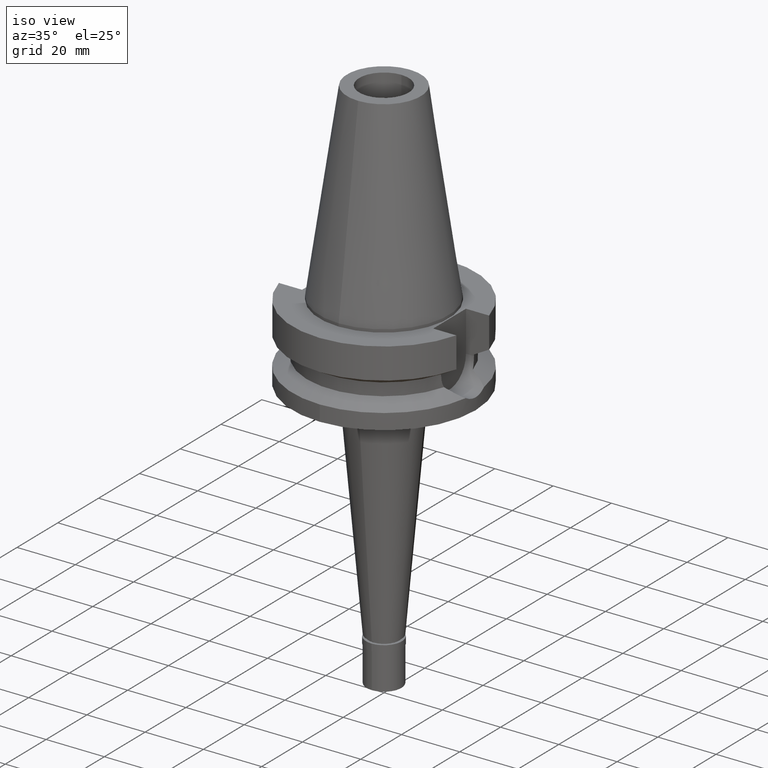
[diagram: clean part render]
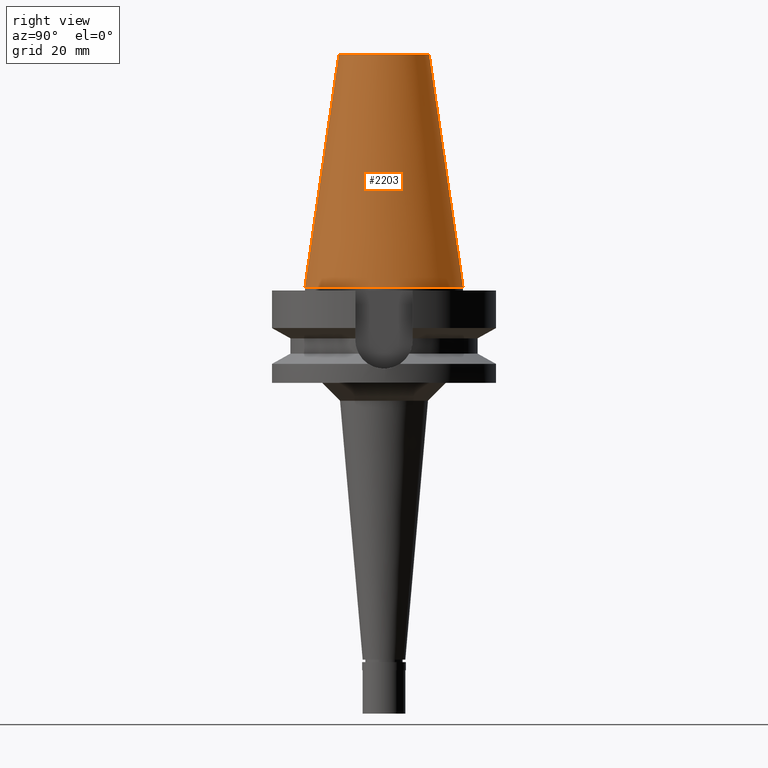
[diagram: tour spotlight — one face highlighted and labeled with its STEP entity id]
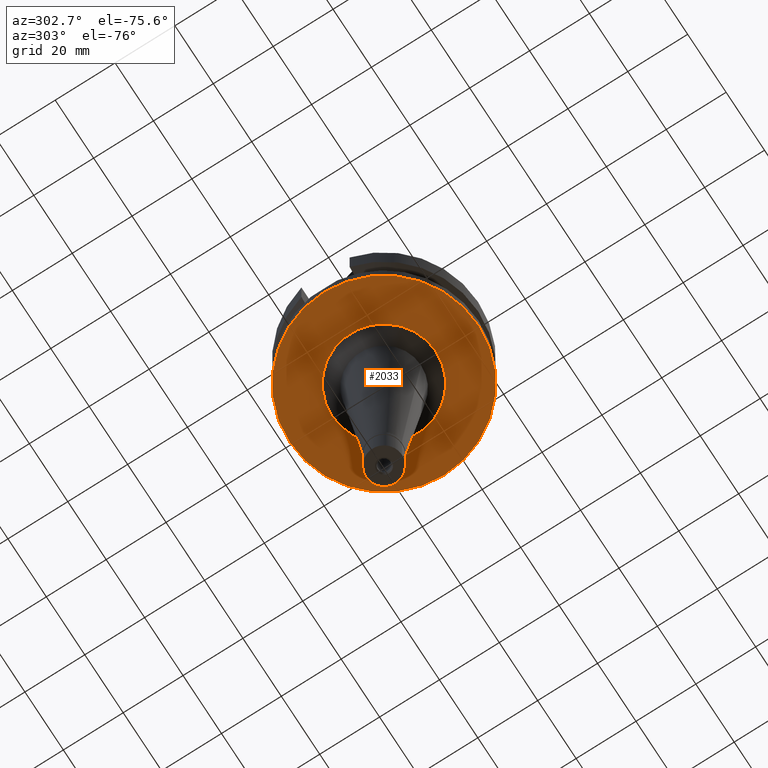
[diagram: tour spotlight — one face highlighted and labeled with its STEP entity id]
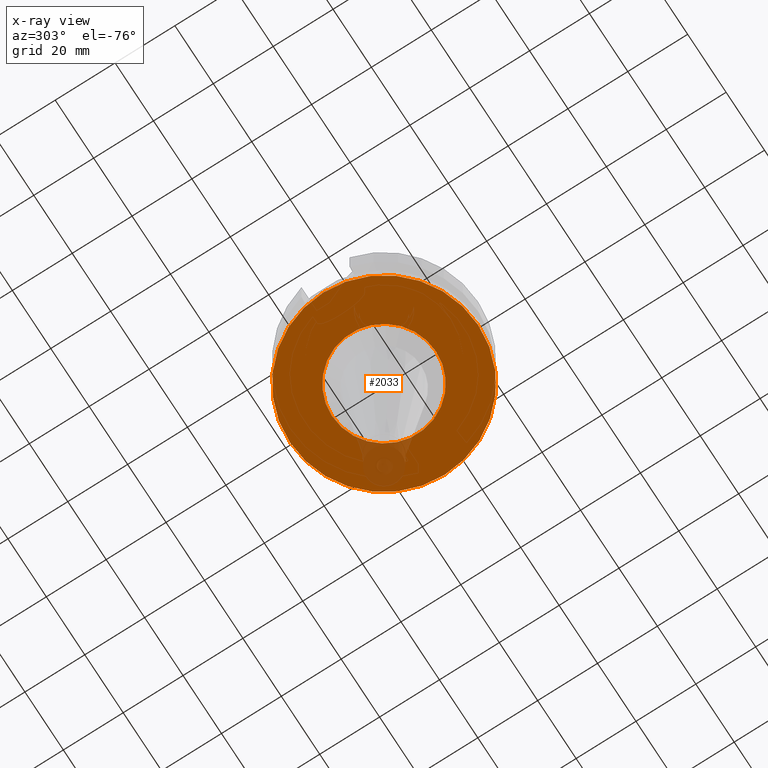
[diagram: x-ray of the same camera — body ghosted, this tour face saturated]
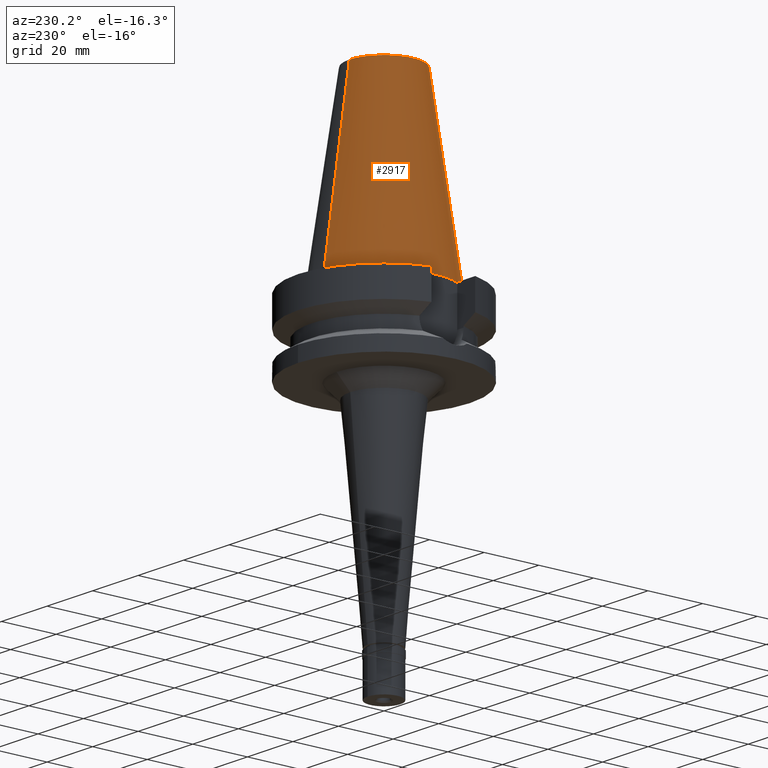
[diagram: tour spotlight — one face highlighted and labeled with its STEP entity id]
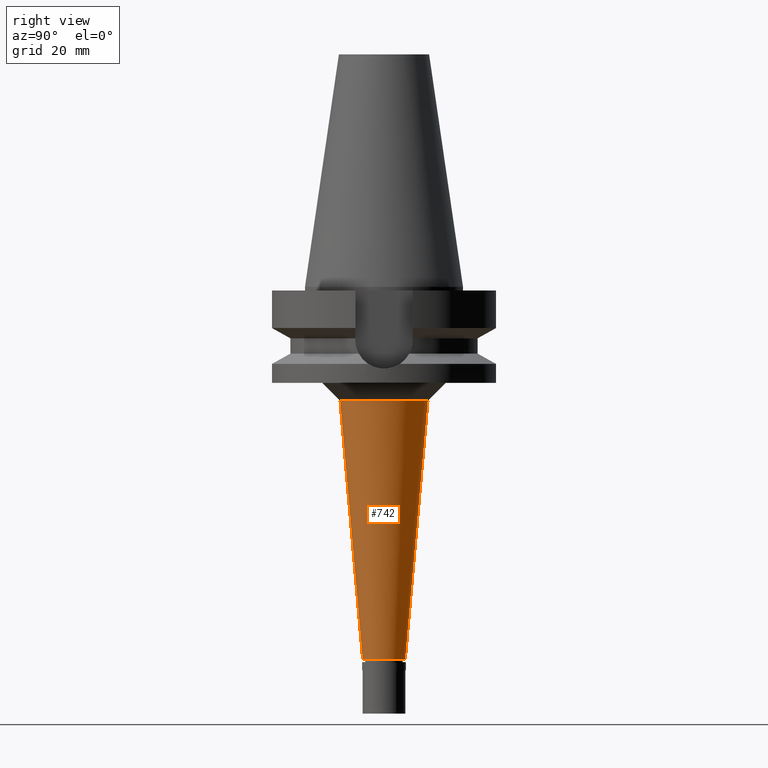
[diagram: tour spotlight — one face highlighted and labeled with its STEP entity id]
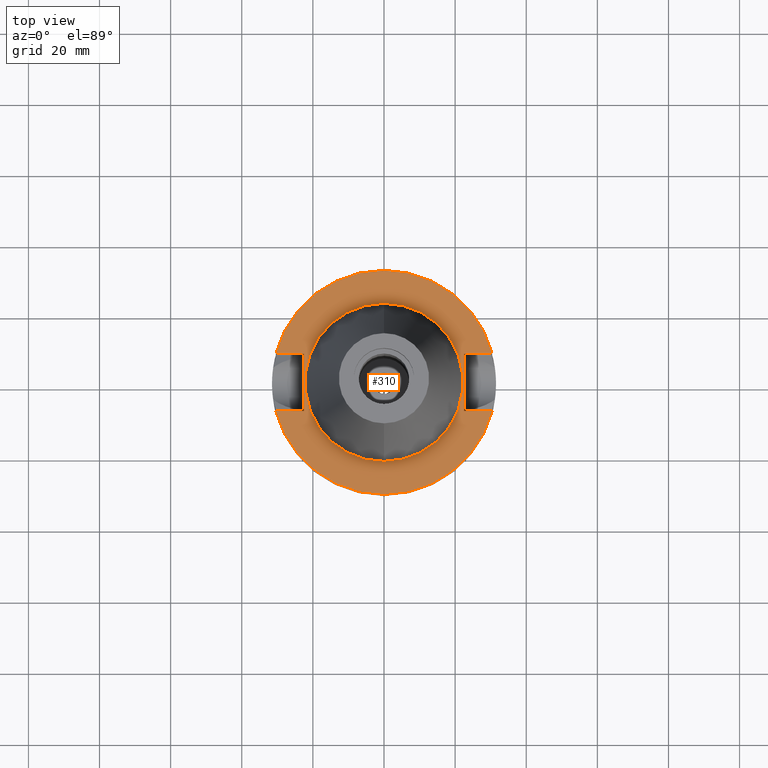
[diagram: tour spotlight — one face highlighted and labeled with its STEP entity id]
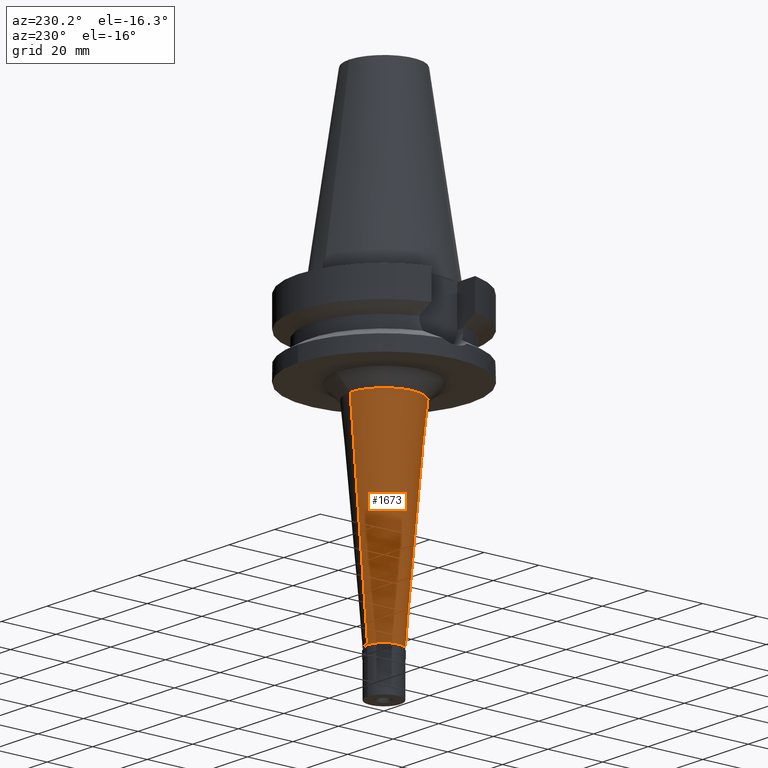
[diagram: tour spotlight — one face highlighted and labeled with its STEP entity id]
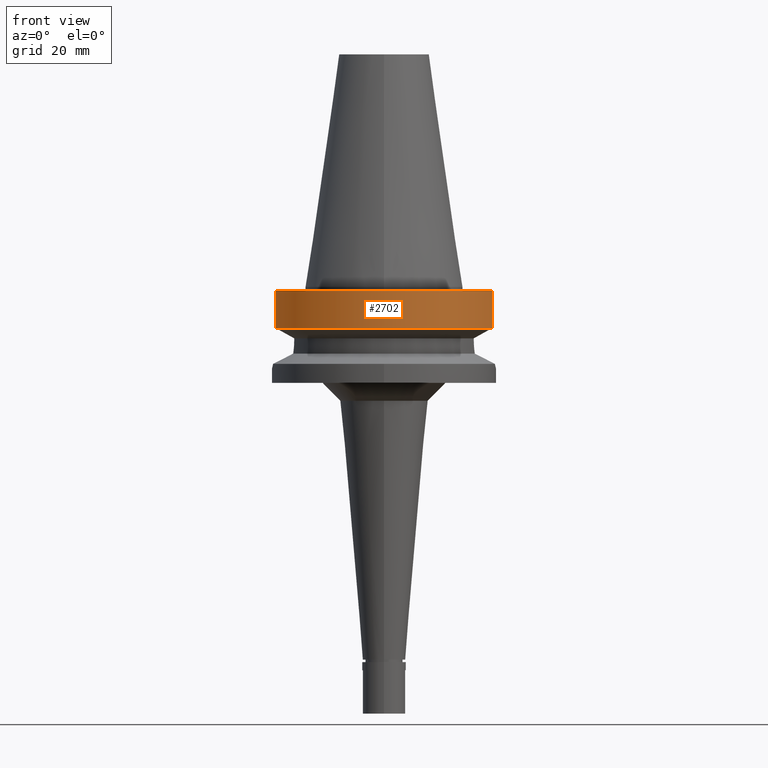
[diagram: tour spotlight — one face highlighted and labeled with its STEP entity id]
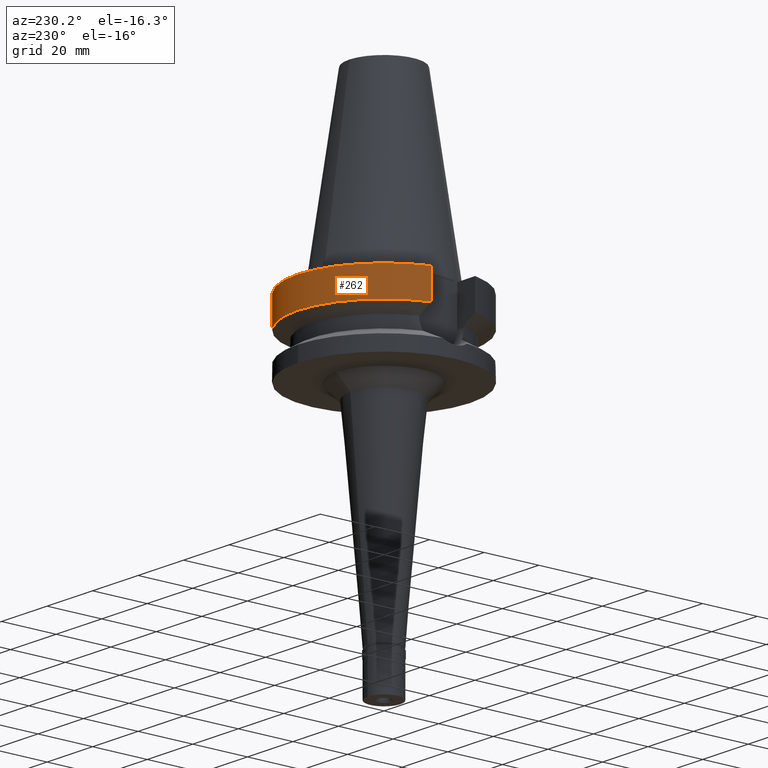
[diagram: tour spotlight — one face highlighted and labeled with its STEP entity id]
A machine part: a face-by-face anatomy tour. The part has 74 B-rep faces; the first image is the clean iso view, then the 8 largest visible faces are spotlighted one at a time (largest first), each with its STEP entity span.

Face 1 — right view, entity #2203. In plain terms, the highlighted conical surface has half-angle 8.297 deg.
Definition (entity closure, byte-faithful):
#63 = CARTESIAN_POINT ( 'NONE',  ( 0.0000000000000000000, 1.625106302469000024E-14, 2.842170943039999687E-14 ) ) ;
#151 = VERTEX_POINT ( 'NONE', #2082 ) ;
#243 = DIRECTION ( 'NONE',  ( 0.0000000000000000000, -1.000000000000000000, 0.0000000000000000000 ) ) ;
#510 = DIRECTION ( 'NONE',  ( 0.0000000000000000000, 0.0000000000000000000, -1.000000000000000000 ) ) ;
#516 = VECTOR ( 'NONE', #2311, 1000.000000000000114 ) ;
#519 = VERTEX_POINT ( 'NONE', #2847 ) ;
#544 = CONICAL_SURFACE ( 'NONE', #2575, 17.45633449714999941, 0.1448099680379422438 ) ;
#687 = CARTESIAN_POINT ( 'NONE',  ( 0.0000000000000000000, 1.625106302469000024E-14, 32.70000000000000284 ) ) ;
#689 = DIRECTION ( 'NONE',  ( 0.0000000000000000000, 1.000000000000000000, 0.0000000000000000000 ) ) ;
#707 = EDGE_CURVE ( 'NONE', #519, #2806, #2832, .T. ) ;
#808 = DIRECTION ( 'NONE',  ( 0.0000000000000000000, -0.1443043893539925626, -0.9895333461855498891 ) ) ;
#820 = LINE ( 'NONE', #2256, #2534 ) ;
#1031 = CARTESIAN_POINT ( 'NONE',  ( 0.0000000000000000000, -12.68766899429999917, 65.40000000000000568 ) ) ;
#1056 = VERTEX_POINT ( 'NONE', #2069 ) ;
#1073 = ORIENTED_EDGE ( 'NONE', *, *, #1754, .F. ) ;
#1502 = AXIS2_PLACEMENT_3D ( 'NONE', #63, #510, #689 ) ;
#1555 = DIRECTION ( 'NONE',  ( 0.0000000000000000000, 0.0000000000000000000, -1.000000000000000000 ) ) ;
#1754 = EDGE_CURVE ( 'NONE', #519, #151, #2547, .T. ) ;
#1937 = EDGE_CURVE ( 'NONE', #151, #1056, #2635, .T. ) ;
#1942 = ORIENTED_EDGE ( 'NONE', *, *, #1937, .F. ) ;
#2058 = ORIENTED_EDGE ( 'NONE', *, *, #707, .T. ) ;
#2069 = CARTESIAN_POINT ( 'NONE',  ( 0.0000000000000000000, -22.22500000000000142, 1.065814103639999827E-13 ) ) ;
#2082 = CARTESIAN_POINT ( 'NONE',  ( 0.0000000000000000000, 22.22500000000000142, 1.065814103639999827E-13 ) ) ;
#2129 = DIRECTION ( 'NONE',  ( 0.0000000000000000000, 0.0000000000000000000, -1.000000000000000000 ) ) ;
#2203 = ADVANCED_FACE ( 'NONE', ( #2532 ), #544, .T. ) ;
#2256 = CARTESIAN_POINT ( 'NONE',  ( 0.0000000000000000000, -12.68766899429999917, 65.40000000000000568 ) ) ;
#2275 = DIRECTION ( 'NONE',  ( 0.0000000000000000000, 1.000000000000000000, 0.0000000000000000000 ) ) ;
#2311 = DIRECTION ( 'NONE',  ( 0.0000000000000000000, 0.1443043893539925626, -0.9895333461855498891 ) ) ;
#2532 = FACE_OUTER_BOUND ( 'NONE', #2548, .T. ) ;
#2534 = VECTOR ( 'NONE', #808, 1000.000000000000114 ) ;
#2547 = LINE ( 'NONE', #2755, #516 ) ;
#2548 = EDGE_LOOP ( 'NONE', ( #2058, #2619, #1942, #1073 ) ) ;
#2553 = AXIS2_PLACEMENT_3D ( 'NONE', #2714, #1555, #2275 ) ;
#2575 = AXIS2_PLACEMENT_3D ( 'NONE', #687, #2129, #243 ) ;
#2619 = ORIENTED_EDGE ( 'NONE', *, *, #2858, .T. ) ;
#2635 = CIRCLE ( 'NONE', #1502, 22.22500000000000142 ) ;
#2714 = CARTESIAN_POINT ( 'NONE',  ( 0.0000000000000000000, 1.625106302469000024E-14, 65.40000000000000568 ) ) ;
#2755 = CARTESIAN_POINT ( 'NONE',  ( 0.0000000000000000000, 12.68766899429999917, 65.40000000000000568 ) ) ;
#2806 = VERTEX_POINT ( 'NONE', #1031 ) ;
#2832 = CIRCLE ( 'NONE', #2553, 12.68766899429999917 ) ;
#2847 = CARTESIAN_POINT ( 'NONE',  ( 0.0000000000000000000, 12.68766899429999917, 65.40000000000000568 ) ) ;
#2858 = EDGE_CURVE ( 'NONE', #2806, #1056, #820, .T. ) ;

Face 2 — auxiliary view, entity #2033. An x-ray twin of the same camera follows (body ghosted, this face saturated) — the face is partly hidden behind the body. In plain terms, the highlighted planar face has unit normal (0, 0, -1).
Definition (entity closure, byte-faithful):
#4 = VERTEX_POINT ( 'NONE', #2513 ) ;
#46 = CIRCLE ( 'NONE', #1680, 17.36917470468999980 ) ;
#92 = CARTESIAN_POINT ( 'NONE',  ( 0.0000000000000000000, 0.0000000000000000000, -27.00000000000000000 ) ) ;
#105 = FACE_BOUND ( 'NONE', #1136, .T. ) ;
#340 = FACE_OUTER_BOUND ( 'NONE', #1606, .T. ) ;
#374 = VERTEX_POINT ( 'NONE', #1457 ) ;
#444 = DIRECTION ( 'NONE',  ( 0.0000000000000000000, -1.000000000000000000, 0.0000000000000000000 ) ) ;
#478 = CARTESIAN_POINT ( 'NONE',  ( 0.0000000000000000000, 17.36917470468999980, -27.00000000000000000 ) ) ;
#585 = PLANE ( 'NONE',  #2856 ) ;
#642 = CARTESIAN_POINT ( 'NONE',  ( 0.0000000000000000000, 2.136641270472000125E-14, -27.00000000000000000 ) ) ;
#670 = EDGE_CURVE ( 'NONE', #1787, #2081, #46, .T. ) ;
#773 = DIRECTION ( 'NONE',  ( 0.0000000000000000000, 0.0000000000000000000, -1.000000000000000000 ) ) ;
#1086 = EDGE_CURVE ( 'NONE', #2081, #1787, #2556, .T. ) ;
#1111 = DIRECTION ( 'NONE',  ( 0.0000000000000000000, 1.000000000000000000, 0.0000000000000000000 ) ) ;
#1136 = EDGE_LOOP ( 'NONE', ( #1728, #2839 ) ) ;
#1285 = AXIS2_PLACEMENT_3D ( 'NONE', #1587, #2764, #444 ) ;
#1332 = DIRECTION ( 'NONE',  ( 0.0000000000000000000, -1.000000000000000000, 0.0000000000000000000 ) ) ;
#1452 = CIRCLE ( 'NONE', #2435, 31.50000000000000000 ) ;
#1457 = CARTESIAN_POINT ( 'NONE',  ( 0.0000000000000000000, 31.50000000000000000, -27.00000000000000000 ) ) ;
#1479 = DIRECTION ( 'NONE',  ( 0.0000000000000000000, -1.000000000000000000, 0.0000000000000000000 ) ) ;
#1556 = DIRECTION ( 'NONE',  ( 0.0000000000000000000, 0.0000000000000000000, 1.000000000000000000 ) ) ;
#1587 = CARTESIAN_POINT ( 'NONE',  ( 0.0000000000000000000, 0.0000000000000000000, -27.00000000000000000 ) ) ;
#1606 = EDGE_LOOP ( 'NONE', ( #1714, #2123 ) ) ;
#1659 = AXIS2_PLACEMENT_3D ( 'NONE', #642, #1556, #1332 ) ;
#1680 = AXIS2_PLACEMENT_3D ( 'NONE', #2451, #2924, #1111 ) ;
#1714 = ORIENTED_EDGE ( 'NONE', *, *, #1994, .F. ) ;
#1728 = ORIENTED_EDGE ( 'NONE', *, *, #670, .F. ) ;
#1787 = VERTEX_POINT ( 'NONE', #478 ) ;
#1799 = CIRCLE ( 'NONE', #1659, 31.50000000000000000 ) ;
#1994 = EDGE_CURVE ( 'NONE', #374, #4, #1452, .T. ) ;
#2033 = ADVANCED_FACE ( 'NONE', ( #340, #105 ), #585, .T. ) ;
#2081 = VERTEX_POINT ( 'NONE', #2925 ) ;
#2084 = EDGE_CURVE ( 'NONE', #4, #374, #1799, .T. ) ;
#2123 = ORIENTED_EDGE ( 'NONE', *, *, #2084, .F. ) ;
#2347 = DIRECTION ( 'NONE',  ( 0.0000000000000000000, 1.000000000000000000, 0.0000000000000000000 ) ) ;
#2435 = AXIS2_PLACEMENT_3D ( 'NONE', #2776, #2565, #2347 ) ;
#2451 = CARTESIAN_POINT ( 'NONE',  ( 0.0000000000000000000, 0.0000000000000000000, -27.00000000000000000 ) ) ;
#2513 = CARTESIAN_POINT ( 'NONE',  ( 0.0000000000000000000, -31.50000000000000000, -27.00000000000000000 ) ) ;
#2556 = CIRCLE ( 'NONE', #1285, 17.36917470468999980 ) ;
#2565 = DIRECTION ( 'NONE',  ( 0.0000000000000000000, 0.0000000000000000000, 1.000000000000000000 ) ) ;
#2764 = DIRECTION ( 'NONE',  ( 0.0000000000000000000, 0.0000000000000000000, -1.000000000000000000 ) ) ;
#2776 = CARTESIAN_POINT ( 'NONE',  ( 0.0000000000000000000, 2.136641270472000125E-14, -27.00000000000000000 ) ) ;
#2839 = ORIENTED_EDGE ( 'NONE', *, *, #1086, .F. ) ;
#2856 = AXIS2_PLACEMENT_3D ( 'NONE', #92, #773, #1479 ) ;
#2924 = DIRECTION ( 'NONE',  ( 0.0000000000000000000, 0.0000000000000000000, -1.000000000000000000 ) ) ;
#2925 = CARTESIAN_POINT ( 'NONE',  ( 0.0000000000000000000, -17.36917470468999980, -27.00000000000000000 ) ) ;

Face 3 — auxiliary view, entity #2917. In plain terms, the highlighted conical surface has half-angle 8.297 deg.
Definition (entity closure, byte-faithful):
#151 = VERTEX_POINT ( 'NONE', #2082 ) ;
#168 = EDGE_LOOP ( 'NONE', ( #1746, #1911, #2149, #385 ) ) ;
#339 = EDGE_CURVE ( 'NONE', #1056, #151, #992, .T. ) ;
#347 = DIRECTION ( 'NONE',  ( 0.0000000000000000000, -1.000000000000000000, 0.0000000000000000000 ) ) ;
#379 = DIRECTION ( 'NONE',  ( 0.0000000000000000000, -1.000000000000000000, 0.0000000000000000000 ) ) ;
#384 = DIRECTION ( 'NONE',  ( 0.0000000000000000000, 0.0000000000000000000, -1.000000000000000000 ) ) ;
#385 = ORIENTED_EDGE ( 'NONE', *, *, #1754, .T. ) ;
#516 = VECTOR ( 'NONE', #2311, 1000.000000000000114 ) ;
#519 = VERTEX_POINT ( 'NONE', #2847 ) ;
#772 = EDGE_CURVE ( 'NONE', #2806, #519, #2064, .T. ) ;
#808 = DIRECTION ( 'NONE',  ( 0.0000000000000000000, -0.1443043893539925626, -0.9895333461855498891 ) ) ;
#820 = LINE ( 'NONE', #2256, #2534 ) ;
#992 = CIRCLE ( 'NONE', #1722, 22.22500000000000142 ) ;
#1031 = CARTESIAN_POINT ( 'NONE',  ( 0.0000000000000000000, -12.68766899429999917, 65.40000000000000568 ) ) ;
#1056 = VERTEX_POINT ( 'NONE', #2069 ) ;
#1096 = DIRECTION ( 'NONE',  ( 0.0000000000000000000, 0.0000000000000000000, -1.000000000000000000 ) ) ;
#1129 = AXIS2_PLACEMENT_3D ( 'NONE', #2700, #1096, #379 ) ;
#1247 = CARTESIAN_POINT ( 'NONE',  ( 0.0000000000000000000, 1.625106302469000024E-14, 2.842170943039999687E-14 ) ) ;
#1293 = DIRECTION ( 'NONE',  ( 0.0000000000000000000, -1.000000000000000000, 0.0000000000000000000 ) ) ;
#1432 = AXIS2_PLACEMENT_3D ( 'NONE', #1878, #384, #1293 ) ;
#1458 = CONICAL_SURFACE ( 'NONE', #1129, 17.45633449714999941, 0.1448099680379422438 ) ;
#1722 = AXIS2_PLACEMENT_3D ( 'NONE', #1247, #2883, #347 ) ;
#1746 = ORIENTED_EDGE ( 'NONE', *, *, #339, .F. ) ;
#1754 = EDGE_CURVE ( 'NONE', #519, #151, #2547, .T. ) ;
#1878 = CARTESIAN_POINT ( 'NONE',  ( 0.0000000000000000000, 1.625106302469000024E-14, 65.40000000000000568 ) ) ;
#1911 = ORIENTED_EDGE ( 'NONE', *, *, #2858, .F. ) ;
#2064 = CIRCLE ( 'NONE', #1432, 12.68766899429999917 ) ;
#2069 = CARTESIAN_POINT ( 'NONE',  ( 0.0000000000000000000, -22.22500000000000142, 1.065814103639999827E-13 ) ) ;
#2082 = CARTESIAN_POINT ( 'NONE',  ( 0.0000000000000000000, 22.22500000000000142, 1.065814103639999827E-13 ) ) ;
#2149 = ORIENTED_EDGE ( 'NONE', *, *, #772, .T. ) ;
#2256 = CARTESIAN_POINT ( 'NONE',  ( 0.0000000000000000000, -12.68766899429999917, 65.40000000000000568 ) ) ;
#2311 = DIRECTION ( 'NONE',  ( 0.0000000000000000000, 0.1443043893539925626, -0.9895333461855498891 ) ) ;
#2534 = VECTOR ( 'NONE', #808, 1000.000000000000114 ) ;
#2547 = LINE ( 'NONE', #2755, #516 ) ;
#2700 = CARTESIAN_POINT ( 'NONE',  ( 0.0000000000000000000, 1.625106302469000024E-14, 32.70000000000000284 ) ) ;
#2755 = CARTESIAN_POINT ( 'NONE',  ( 0.0000000000000000000, 12.68766899429999917, 65.40000000000000568 ) ) ;
#2806 = VERTEX_POINT ( 'NONE', #1031 ) ;
#2847 = CARTESIAN_POINT ( 'NONE',  ( 0.0000000000000000000, 12.68766899429999917, 65.40000000000000568 ) ) ;
#2858 = EDGE_CURVE ( 'NONE', #2806, #1056, #820, .T. ) ;
#2883 = DIRECTION ( 'NONE',  ( 0.0000000000000000000, 0.0000000000000000000, -1.000000000000000000 ) ) ;
#2917 = ADVANCED_FACE ( 'NONE', ( #2927 ), #1458, .T. ) ;
#2927 = FACE_OUTER_BOUND ( 'NONE', #168, .T. ) ;

Face 4 — right view, entity #742. In plain terms, the highlighted conical surface has half-angle 5 deg.
Definition (entity closure, byte-faithful):
#1 = CIRCLE ( 'NONE', #290, 6.000000000000000000 ) ;
#27 = DIRECTION ( 'NONE',  ( 0.0000000000000000000, 0.0000000000000000000, 1.000000000000000000 ) ) ;
#154 = VERTEX_POINT ( 'NONE', #1446 ) ;
#259 = CARTESIAN_POINT ( 'NONE',  ( 0.0000000000000000000, 0.0000000000000000000, -32.00000000000000000 ) ) ;
#268 = VECTOR ( 'NONE', #409, 1000.000000000000227 ) ;
#290 = AXIS2_PLACEMENT_3D ( 'NONE', #625, #581, #783 ) ;
#380 = AXIS2_PLACEMENT_3D ( 'NONE', #259, #27, #2542 ) ;
#409 = DIRECTION ( 'NONE',  ( 0.0000000000000000000, -0.08715574274768382590, -0.9961946980917432137 ) ) ;
#467 = DIRECTION ( 'NONE',  ( 0.0000000000000000000, 0.08715574274768382590, -0.9961946980917432137 ) ) ;
#568 = ORIENTED_EDGE ( 'NONE', *, *, #2282, .F. ) ;
#581 = DIRECTION ( 'NONE',  ( 0.0000000000000000000, 0.0000000000000000000, 1.000000000000000000 ) ) ;
#625 = CARTESIAN_POINT ( 'NONE',  ( 0.0000000000000000000, 0.0000000000000000000, -104.8000000000000114 ) ) ;
#716 = DIRECTION ( 'NONE',  ( 0.0000000000000000000, 1.000000000000000000, 0.0000000000000000000 ) ) ;
#733 = LINE ( 'NONE', #2122, #2787 ) ;
#742 = ADVANCED_FACE ( 'NONE', ( #1459 ), #2834, .T. ) ;
#783 = DIRECTION ( 'NONE',  ( 0.0000000000000000000, -1.000000000000000000, 0.0000000000000000000 ) ) ;
#824 = EDGE_CURVE ( 'NONE', #1575, #1956, #1, .T. ) ;
#1029 = EDGE_CURVE ( 'NONE', #154, #1456, #1723, .T. ) ;
#1084 = ORIENTED_EDGE ( 'NONE', *, *, #824, .T. ) ;
#1331 = AXIS2_PLACEMENT_3D ( 'NONE', #2119, #2104, #716 ) ;
#1337 = LINE ( 'NONE', #1976, #268 ) ;
#1378 = CARTESIAN_POINT ( 'NONE',  ( 0.0000000000000000000, 6.000000000000000000, -104.8000000000000114 ) ) ;
#1446 = CARTESIAN_POINT ( 'NONE',  ( 0.0000000000000000000, -12.36917470469000158, -32.00000000000000000 ) ) ;
#1456 = VERTEX_POINT ( 'NONE', #1604 ) ;
#1459 = FACE_OUTER_BOUND ( 'NONE', #1985, .T. ) ;
#1575 = VERTEX_POINT ( 'NONE', #1768 ) ;
#1604 = CARTESIAN_POINT ( 'NONE',  ( 0.0000000000000000000, 12.36917470469000158, -32.00000000000000000 ) ) ;
#1723 = CIRCLE ( 'NONE', #380, 12.36917470469000158 ) ;
#1768 = CARTESIAN_POINT ( 'NONE',  ( 0.0000000000000000000, -6.000000000000000000, -104.8000000000000114 ) ) ;
#1922 = EDGE_CURVE ( 'NONE', #154, #1575, #733, .T. ) ;
#1956 = VERTEX_POINT ( 'NONE', #1378 ) ;
#1976 = CARTESIAN_POINT ( 'NONE',  ( 0.0000000000000000000, 12.36917470469000158, -32.00000000000000000 ) ) ;
#1985 = EDGE_LOOP ( 'NONE', ( #2389, #2757, #1084, #568 ) ) ;
#2104 = DIRECTION ( 'NONE',  ( 0.0000000000000000000, 0.0000000000000000000, 1.000000000000000000 ) ) ;
#2119 = CARTESIAN_POINT ( 'NONE',  ( 0.0000000000000000000, 0.0000000000000000000, -68.40000000000000568 ) ) ;
#2122 = CARTESIAN_POINT ( 'NONE',  ( 0.0000000000000000000, -12.36917470469000158, -32.00000000000000000 ) ) ;
#2282 = EDGE_CURVE ( 'NONE', #1456, #1956, #1337, .T. ) ;
#2389 = ORIENTED_EDGE ( 'NONE', *, *, #1029, .F. ) ;
#2542 = DIRECTION ( 'NONE',  ( 0.0000000000000000000, -1.000000000000000000, 0.0000000000000000000 ) ) ;
#2757 = ORIENTED_EDGE ( 'NONE', *, *, #1922, .T. ) ;
#2787 = VECTOR ( 'NONE', #467, 1000.000000000000227 ) ;
#2834 = CONICAL_SURFACE ( 'NONE', #1331, 9.184587352343999811, 0.08726646259969973729 ) ;

Face 5 — top view, entity #310. In plain terms, the highlighted planar face has unit normal (0, 0, -1).
Definition (entity closure, byte-faithful):
#30 = DIRECTION ( 'NONE',  ( 0.0000000000000000000, 0.0000000000000000000, -1.000000000000000000 ) ) ;
#65 = VERTEX_POINT ( 'NONE', #414 ) ;
#91 = AXIS2_PLACEMENT_3D ( 'NONE', #1664, #30, #948 ) ;
#93 = VECTOR ( 'NONE', #807, 1000.000000000000000 ) ;
#165 = CARTESIAN_POINT ( 'NONE',  ( -22.50000000000000000, -8.050000000000000711, -1.000000000000000000 ) ) ;
#214 = DIRECTION ( 'NONE',  ( 0.0000000000000000000, -1.000000000000000000, 0.0000000000000000000 ) ) ;
#220 = EDGE_CURVE ( 'NONE', #1153, #65, #1625, .T. ) ;
#252 = VECTOR ( 'NONE', #2965, 1000.000000000000000 ) ;
#256 = CARTESIAN_POINT ( 'NONE',  ( 0.0000000000000000000, 22.22500000000000142, -1.000000000000000000 ) ) ;
#310 = ADVANCED_FACE ( 'NONE', ( #822, #578 ), #1517, .F. ) ;
#335 = CARTESIAN_POINT ( 'NONE',  ( 0.0000000000000000000, 1.212400331155999925E-14, -1.000000000000000000 ) ) ;
#369 = LINE ( 'NONE', #165, #1190 ) ;
#391 = EDGE_CURVE ( 'NONE', #583, #2206, #2851, .T. ) ;
#392 = CARTESIAN_POINT ( 'NONE',  ( -30.45402272279000044, -8.050000000000000711, -1.000000000000000000 ) ) ;
#414 = CARTESIAN_POINT ( 'NONE',  ( 30.45402272279000044, 8.050000000000000711, -1.000000000000000000 ) ) ;
#447 = EDGE_CURVE ( 'NONE', #2483, #984, #476, .T. ) ;
#452 = EDGE_CURVE ( 'NONE', #583, #65, #788, .T. ) ;
#476 = CIRCLE ( 'NONE', #1473, 22.22500000000000142 ) ;
#517 = AXIS2_PLACEMENT_3D ( 'NONE', #335, #1260, #1929 ) ;
#521 = ORIENTED_EDGE ( 'NONE', *, *, #2342, .F. ) ;
#539 = DIRECTION ( 'NONE',  ( 0.0000000000000000000, 1.000000000000000000, 0.0000000000000000000 ) ) ;
#578 = FACE_BOUND ( 'NONE', #1812, .T. ) ;
#583 = VERTEX_POINT ( 'NONE', #1349 ) ;
#609 = LINE ( 'NONE', #1547, #2164 ) ;
#632 = CARTESIAN_POINT ( 'NONE',  ( 0.0000000000000000000, 2.136641270472000125E-14, -1.000000000000000000 ) ) ;
#677 = CARTESIAN_POINT ( 'NONE',  ( 0.0000000000000000000, -22.22500000000000142, -1.000000000000000000 ) ) ;
#779 = CARTESIAN_POINT ( 'NONE',  ( 22.50000000000000000, 8.050000000000000711, -1.000000000000000000 ) ) ;
#788 = LINE ( 'NONE', #1954, #93 ) ;
#807 = DIRECTION ( 'NONE',  ( 1.000000000000000000, -3.506251283225999947E-14, 0.0000000000000000000 ) ) ;
#822 = FACE_OUTER_BOUND ( 'NONE', #1137, .T. ) ;
#829 = EDGE_CURVE ( 'NONE', #1991, #2879, #369, .T. ) ;
#923 = LINE ( 'NONE', #1574, #252 ) ;
#948 = DIRECTION ( 'NONE',  ( 0.0000000000000000000, 1.000000000000000000, 0.0000000000000000000 ) ) ;
#984 = VERTEX_POINT ( 'NONE', #677 ) ;
#988 = VERTEX_POINT ( 'NONE', #1569 ) ;
#996 = VECTOR ( 'NONE', #1653, 1000.000000000000000 ) ;
#1083 = DIRECTION ( 'NONE',  ( -1.000000000000000000, -3.550916904668000126E-14, 0.0000000000000000000 ) ) ;
#1137 = EDGE_LOOP ( 'NONE', ( #1654, #1416, #1149, #2817, #2873, #2308, #1865, #1981 ) ) ;
#1149 = ORIENTED_EDGE ( 'NONE', *, *, #1508, .F. ) ;
#1153 = VERTEX_POINT ( 'NONE', #1480 ) ;
#1190 = VECTOR ( 'NONE', #1992, 1000.000000000000000 ) ;
#1260 = DIRECTION ( 'NONE',  ( 0.0000000000000000000, 0.0000000000000000000, -1.000000000000000000 ) ) ;
#1349 = CARTESIAN_POINT ( 'NONE',  ( 22.50000000000000000, 8.050000000000000711, -1.000000000000000000 ) ) ;
#1399 = EDGE_CURVE ( 'NONE', #1991, #988, #923, .T. ) ;
#1400 = CARTESIAN_POINT ( 'NONE',  ( 22.50000000000000000, -8.050000000000000711, -1.000000000000000000 ) ) ;
#1416 = ORIENTED_EDGE ( 'NONE', *, *, #1417, .F. ) ;
#1417 = EDGE_CURVE ( 'NONE', #1993, #2879, #2506, .T. ) ;
#1473 = AXIS2_PLACEMENT_3D ( 'NONE', #1498, #2896, #539 ) ;
#1480 = CARTESIAN_POINT ( 'NONE',  ( -30.45402272279000044, 8.050000000000000711, -1.000000000000000000 ) ) ;
#1498 = CARTESIAN_POINT ( 'NONE',  ( 0.0000000000000000000, 2.136641270472000125E-14, -1.000000000000000000 ) ) ;
#1508 = EDGE_CURVE ( 'NONE', #2206, #1993, #2354, .T. ) ;
#1517 = PLANE ( 'NONE',  #517 ) ;
#1531 = EDGE_CURVE ( 'NONE', #988, #1153, #609, .T. ) ;
#1546 = DIRECTION ( 'NONE',  ( 0.0000000000000000000, 0.0000000000000000000, 1.000000000000000000 ) ) ;
#1547 = CARTESIAN_POINT ( 'NONE',  ( -22.50000000000000000, 8.050000000000000711, -1.000000000000000000 ) ) ;
#1569 = CARTESIAN_POINT ( 'NONE',  ( -22.50000000000000000, 8.050000000000000711, -1.000000000000000000 ) ) ;
#1574 = CARTESIAN_POINT ( 'NONE',  ( -22.50000000000000000, -8.050000000000000711, -1.000000000000000000 ) ) ;
#1625 = CIRCLE ( 'NONE', #91, 31.50000000000000000 ) ;
#1653 = DIRECTION ( 'NONE',  ( 1.000000000000000000, 3.573249715389999860E-14, 0.0000000000000000000 ) ) ;
#1654 = ORIENTED_EDGE ( 'NONE', *, *, #829, .T. ) ;
#1664 = CARTESIAN_POINT ( 'NONE',  ( 0.0000000000000000000, 2.136641270472000125E-14, -1.000000000000000000 ) ) ;
#1704 = DIRECTION ( 'NONE',  ( 0.0000000000000000000, -1.000000000000000000, 0.0000000000000000000 ) ) ;
#1812 = EDGE_LOOP ( 'NONE', ( #2270, #521 ) ) ;
#1816 = CARTESIAN_POINT ( 'NONE',  ( 0.0000000000000000000, 2.136641270472000125E-14, -1.000000000000000000 ) ) ;
#1848 = CARTESIAN_POINT ( 'NONE',  ( 30.45402272279000044, -8.050000000000000711, -1.000000000000000000 ) ) ;
#1865 = ORIENTED_EDGE ( 'NONE', *, *, #1531, .F. ) ;
#1929 = DIRECTION ( 'NONE',  ( 0.0000000000000000000, -1.000000000000000000, 0.0000000000000000000 ) ) ;
#1954 = CARTESIAN_POINT ( 'NONE',  ( 22.50000000000000000, 8.050000000000000711, -1.000000000000000000 ) ) ;
#1981 = ORIENTED_EDGE ( 'NONE', *, *, #1399, .F. ) ;
#1991 = VERTEX_POINT ( 'NONE', #2300 ) ;
#1992 = DIRECTION ( 'NONE',  ( -1.000000000000000000, 3.550916904668000126E-14, 0.0000000000000000000 ) ) ;
#1993 = VERTEX_POINT ( 'NONE', #1848 ) ;
#2164 = VECTOR ( 'NONE', #1083, 1000.000000000000000 ) ;
#2206 = VERTEX_POINT ( 'NONE', #1400 ) ;
#2229 = DIRECTION ( 'NONE',  ( 0.0000000000000000000, -1.000000000000000000, 0.0000000000000000000 ) ) ;
#2242 = CIRCLE ( 'NONE', #2289, 22.22500000000000142 ) ;
#2270 = ORIENTED_EDGE ( 'NONE', *, *, #447, .F. ) ;
#2283 = DIRECTION ( 'NONE',  ( 0.0000000000000000000, 0.0000000000000000000, -1.000000000000000000 ) ) ;
#2289 = AXIS2_PLACEMENT_3D ( 'NONE', #632, #1546, #2229 ) ;
#2300 = CARTESIAN_POINT ( 'NONE',  ( -22.50000000000000000, -8.050000000000000711, -1.000000000000000000 ) ) ;
#2308 = ORIENTED_EDGE ( 'NONE', *, *, #220, .F. ) ;
#2342 = EDGE_CURVE ( 'NONE', #984, #2483, #2242, .T. ) ;
#2354 = LINE ( 'NONE', #2588, #996 ) ;
#2483 = VERTEX_POINT ( 'NONE', #256 ) ;
#2506 = CIRCLE ( 'NONE', #2746, 31.50000000000000000 ) ;
#2588 = CARTESIAN_POINT ( 'NONE',  ( 22.50000000000000000, -8.050000000000000711, -1.000000000000000000 ) ) ;
#2742 = VECTOR ( 'NONE', #1704, 1000.000000000000000 ) ;
#2746 = AXIS2_PLACEMENT_3D ( 'NONE', #1816, #2283, #214 ) ;
#2817 = ORIENTED_EDGE ( 'NONE', *, *, #391, .F. ) ;
#2851 = LINE ( 'NONE', #779, #2742 ) ;
#2873 = ORIENTED_EDGE ( 'NONE', *, *, #452, .T. ) ;
#2879 = VERTEX_POINT ( 'NONE', #392 ) ;
#2896 = DIRECTION ( 'NONE',  ( 0.0000000000000000000, 0.0000000000000000000, 1.000000000000000000 ) ) ;
#2965 = DIRECTION ( 'NONE',  ( 0.0000000000000000000, 1.000000000000000000, 0.0000000000000000000 ) ) ;

Face 6 — auxiliary view, entity #1673. In plain terms, the highlighted conical surface has half-angle 5 deg.
Definition (entity closure, byte-faithful):
#154 = VERTEX_POINT ( 'NONE', #1446 ) ;
#258 = EDGE_CURVE ( 'NONE', #154, #1456, #708, .T. ) ;
#268 = VECTOR ( 'NONE', #409, 1000.000000000000227 ) ;
#409 = DIRECTION ( 'NONE',  ( 0.0000000000000000000, -0.08715574274768382590, -0.9961946980917432137 ) ) ;
#423 = ORIENTED_EDGE ( 'NONE', *, *, #2282, .T. ) ;
#467 = DIRECTION ( 'NONE',  ( 0.0000000000000000000, 0.08715574274768382590, -0.9961946980917432137 ) ) ;
#475 = DIRECTION ( 'NONE',  ( 0.0000000000000000000, -1.000000000000000000, 0.0000000000000000000 ) ) ;
#566 = CONICAL_SURFACE ( 'NONE', #2263, 9.184587352343999811, 0.08726646259969973729 ) ;
#708 = CIRCLE ( 'NONE', #1089, 12.36917470469000158 ) ;
#733 = LINE ( 'NONE', #2122, #2787 ) ;
#745 = ORIENTED_EDGE ( 'NONE', *, *, #1182, .T. ) ;
#847 = DIRECTION ( 'NONE',  ( 0.0000000000000000000, 1.000000000000000000, 0.0000000000000000000 ) ) ;
#862 = ORIENTED_EDGE ( 'NONE', *, *, #1922, .F. ) ;
#865 = DIRECTION ( 'NONE',  ( 0.0000000000000000000, 0.0000000000000000000, 1.000000000000000000 ) ) ;
#893 = CARTESIAN_POINT ( 'NONE',  ( 0.0000000000000000000, 0.0000000000000000000, -68.40000000000000568 ) ) ;
#962 = DIRECTION ( 'NONE',  ( 0.0000000000000000000, 0.0000000000000000000, -1.000000000000000000 ) ) ;
#1089 = AXIS2_PLACEMENT_3D ( 'NONE', #1214, #962, #475 ) ;
#1182 = EDGE_CURVE ( 'NONE', #1956, #1575, #1730, .T. ) ;
#1214 = CARTESIAN_POINT ( 'NONE',  ( 0.0000000000000000000, 0.0000000000000000000, -32.00000000000000000 ) ) ;
#1280 = FACE_OUTER_BOUND ( 'NONE', #2633, .T. ) ;
#1337 = LINE ( 'NONE', #1976, #268 ) ;
#1378 = CARTESIAN_POINT ( 'NONE',  ( 0.0000000000000000000, 6.000000000000000000, -104.8000000000000114 ) ) ;
#1446 = CARTESIAN_POINT ( 'NONE',  ( 0.0000000000000000000, -12.36917470469000158, -32.00000000000000000 ) ) ;
#1456 = VERTEX_POINT ( 'NONE', #1604 ) ;
#1575 = VERTEX_POINT ( 'NONE', #1768 ) ;
#1604 = CARTESIAN_POINT ( 'NONE',  ( 0.0000000000000000000, 12.36917470469000158, -32.00000000000000000 ) ) ;
#1673 = ADVANCED_FACE ( 'NONE', ( #1280 ), #566, .T. ) ;
#1683 = AXIS2_PLACEMENT_3D ( 'NONE', #2383, #1925, #2396 ) ;
#1730 = CIRCLE ( 'NONE', #1683, 6.000000000000000000 ) ;
#1768 = CARTESIAN_POINT ( 'NONE',  ( 0.0000000000000000000, -6.000000000000000000, -104.8000000000000114 ) ) ;
#1922 = EDGE_CURVE ( 'NONE', #154, #1575, #733, .T. ) ;
#1925 = DIRECTION ( 'NONE',  ( 0.0000000000000000000, 0.0000000000000000000, 1.000000000000000000 ) ) ;
#1956 = VERTEX_POINT ( 'NONE', #1378 ) ;
#1976 = CARTESIAN_POINT ( 'NONE',  ( 0.0000000000000000000, 12.36917470469000158, -32.00000000000000000 ) ) ;
#1997 = ORIENTED_EDGE ( 'NONE', *, *, #258, .T. ) ;
#2122 = CARTESIAN_POINT ( 'NONE',  ( 0.0000000000000000000, -12.36917470469000158, -32.00000000000000000 ) ) ;
#2263 = AXIS2_PLACEMENT_3D ( 'NONE', #893, #865, #847 ) ;
#2282 = EDGE_CURVE ( 'NONE', #1456, #1956, #1337, .T. ) ;
#2383 = CARTESIAN_POINT ( 'NONE',  ( 0.0000000000000000000, 0.0000000000000000000, -104.8000000000000114 ) ) ;
#2396 = DIRECTION ( 'NONE',  ( 0.0000000000000000000, 1.000000000000000000, 0.0000000000000000000 ) ) ;
#2633 = EDGE_LOOP ( 'NONE', ( #745, #862, #1997, #423 ) ) ;
#2787 = VECTOR ( 'NONE', #467, 1000.000000000000227 ) ;

Face 7 — front view, entity #2702. In plain terms, the highlighted cylindrical surface (partial cylindrical patch) has radius 31.5 mm, axis along (0, 0, -1).
Definition (entity closure, byte-faithful):
#80 = DIRECTION ( 'NONE',  ( 0.0000000000000000000, 0.0000000000000000000, -1.000000000000000000 ) ) ;
#214 = DIRECTION ( 'NONE',  ( 0.0000000000000000000, -1.000000000000000000, 0.0000000000000000000 ) ) ;
#261 = CARTESIAN_POINT ( 'NONE',  ( 0.0000000000000000000, 1.065333950388000029E-14, -11.56550565266999975 ) ) ;
#272 = EDGE_CURVE ( 'NONE', #359, #2005, #990, .T. ) ;
#359 = VERTEX_POINT ( 'NONE', #2227 ) ;
#392 = CARTESIAN_POINT ( 'NONE',  ( -30.45402272279000044, -8.050000000000000711, -1.000000000000000000 ) ) ;
#464 = EDGE_LOOP ( 'NONE', ( #873, #951, #1784, #2043 ) ) ;
#736 = FACE_OUTER_BOUND ( 'NONE', #464, .T. ) ;
#873 = ORIENTED_EDGE ( 'NONE', *, *, #2570, .F. ) ;
#900 = LINE ( 'NONE', #1584, #2768 ) ;
#951 = ORIENTED_EDGE ( 'NONE', *, *, #272, .T. ) ;
#990 = CIRCLE ( 'NONE', #2786, 31.50000000000000000 ) ;
#1126 = AXIS2_PLACEMENT_3D ( 'NONE', #2808, #80, #1444 ) ;
#1356 = LINE ( 'NONE', #2056, #2500 ) ;
#1394 = CARTESIAN_POINT ( 'NONE',  ( 30.45402272279000044, -8.049999999999000622, -11.56550565266999975 ) ) ;
#1417 = EDGE_CURVE ( 'NONE', #1993, #2879, #2506, .T. ) ;
#1444 = DIRECTION ( 'NONE',  ( 0.0000000000000000000, -1.000000000000000000, 0.0000000000000000000 ) ) ;
#1584 = CARTESIAN_POINT ( 'NONE',  ( -30.45402291362000113, -8.049999278039999595, -11.56551215521000131 ) ) ;
#1784 = ORIENTED_EDGE ( 'NONE', *, *, #1810, .F. ) ;
#1807 = DIRECTION ( 'NONE',  ( 1.806225600065990691E-08, -6.833170949808963405E-08, 0.9999999999999974465 ) ) ;
#1810 = EDGE_CURVE ( 'NONE', #1993, #2005, #1356, .T. ) ;
#1816 = CARTESIAN_POINT ( 'NONE',  ( 0.0000000000000000000, 2.136641270472000125E-14, -1.000000000000000000 ) ) ;
#1848 = CARTESIAN_POINT ( 'NONE',  ( 30.45402272279000044, -8.050000000000000711, -1.000000000000000000 ) ) ;
#1927 = CYLINDRICAL_SURFACE ( 'NONE', #1126, 31.50000000000000000 ) ;
#1993 = VERTEX_POINT ( 'NONE', #1848 ) ;
#2005 = VERTEX_POINT ( 'NONE', #1394 ) ;
#2043 = ORIENTED_EDGE ( 'NONE', *, *, #1417, .T. ) ;
#2056 = CARTESIAN_POINT ( 'NONE',  ( 30.45402272279000044, -8.050000000000000711, -1.000000000000000000 ) ) ;
#2227 = CARTESIAN_POINT ( 'NONE',  ( -30.45402291362000113, -8.049999278039999595, -11.56551215521000131 ) ) ;
#2283 = DIRECTION ( 'NONE',  ( 0.0000000000000000000, 0.0000000000000000000, -1.000000000000000000 ) ) ;
#2500 = VECTOR ( 'NONE', #2770, 1000.000000000000114 ) ;
#2506 = CIRCLE ( 'NONE', #2746, 31.50000000000000000 ) ;
#2570 = EDGE_CURVE ( 'NONE', #359, #2879, #900, .T. ) ;
#2585 = DIRECTION ( 'NONE',  ( 0.0000000000000000000, 0.0000000000000000000, 1.000000000000000000 ) ) ;
#2702 = ADVANCED_FACE ( 'NONE', ( #736 ), #1927, .T. ) ;
#2746 = AXIS2_PLACEMENT_3D ( 'NONE', #1816, #2283, #214 ) ;
#2768 = VECTOR ( 'NONE', #1807, 1000.000000000000114 ) ;
#2770 = DIRECTION ( 'NONE',  ( -1.036791478987017605E-07, -3.922289229453068409E-07, -0.9999999999999177325 ) ) ;
#2785 = DIRECTION ( 'NONE',  ( 0.0000000000000000000, -1.000000000000000000, 0.0000000000000000000 ) ) ;
#2786 = AXIS2_PLACEMENT_3D ( 'NONE', #261, #2585, #2785 ) ;
#2808 = CARTESIAN_POINT ( 'NONE',  ( 0.0000000000000000000, 2.136641270472000125E-14, 74.46999999999999886 ) ) ;
#2879 = VERTEX_POINT ( 'NONE', #392 ) ;

Face 8 — auxiliary view, entity #262. In plain terms, the highlighted cylindrical surface (partial cylindrical patch) has radius 31.5 mm, axis along (0, 0, -1).
Definition (entity closure, byte-faithful):
#14 = EDGE_CURVE ( 'NONE', #1928, #65, #1117, .T. ) ;
#30 = DIRECTION ( 'NONE',  ( 0.0000000000000000000, 0.0000000000000000000, -1.000000000000000000 ) ) ;
#65 = VERTEX_POINT ( 'NONE', #414 ) ;
#91 = AXIS2_PLACEMENT_3D ( 'NONE', #1664, #30, #948 ) ;
#220 = EDGE_CURVE ( 'NONE', #1153, #65, #1625, .T. ) ;
#255 = CARTESIAN_POINT ( 'NONE',  ( 30.45402291369000025, 8.049999277782001528, -11.56551215754000062 ) ) ;
#262 = ADVANCED_FACE ( 'NONE', ( #503 ), #728, .T. ) ;
#333 = AXIS2_PLACEMENT_3D ( 'NONE', #1240, #586, #2471 ) ;
#414 = CARTESIAN_POINT ( 'NONE',  ( 30.45402272279000044, 8.050000000000000711, -1.000000000000000000 ) ) ;
#503 = FACE_OUTER_BOUND ( 'NONE', #2276, .T. ) ;
#586 = DIRECTION ( 'NONE',  ( 0.0000000000000000000, 0.0000000000000000000, 1.000000000000000000 ) ) ;
#590 = CARTESIAN_POINT ( 'NONE',  ( -30.45402162745999775, 8.050004143728999750, -11.56546832771999966 ) ) ;
#728 = CYLINDRICAL_SURFACE ( 'NONE', #2312, 31.50000000000000000 ) ;
#739 = VECTOR ( 'NONE', #2006, 1000.000000000000114 ) ;
#741 = DIRECTION ( 'NONE',  ( 0.0000000000000000000, 0.0000000000000000000, -1.000000000000000000 ) ) ;
#948 = DIRECTION ( 'NONE',  ( 0.0000000000000000000, 1.000000000000000000, 0.0000000000000000000 ) ) ;
#953 = ORIENTED_EDGE ( 'NONE', *, *, #1194, .T. ) ;
#1117 = LINE ( 'NONE', #1813, #1629 ) ;
#1153 = VERTEX_POINT ( 'NONE', #1480 ) ;
#1194 = EDGE_CURVE ( 'NONE', #1928, #2893, #2795, .T. ) ;
#1240 = CARTESIAN_POINT ( 'NONE',  ( 0.0000000000000000000, 1.065333950388000029E-14, -11.56550565266999975 ) ) ;
#1326 = ORIENTED_EDGE ( 'NONE', *, *, #2271, .F. ) ;
#1389 = DIRECTION ( 'NONE',  ( 0.0000000000000000000, -1.000000000000000000, 0.0000000000000000000 ) ) ;
#1403 = CARTESIAN_POINT ( 'NONE',  ( 0.0000000000000000000, 2.136641270472000125E-14, 74.46999999999999886 ) ) ;
#1480 = CARTESIAN_POINT ( 'NONE',  ( -30.45402272279000044, 8.050000000000000711, -1.000000000000000000 ) ) ;
#1549 = DIRECTION ( 'NONE',  ( -1.806872589257990685E-08, 6.835618889793962787E-08, 0.9999999999999974465 ) ) ;
#1625 = CIRCLE ( 'NONE', #91, 31.50000000000000000 ) ;
#1629 = VECTOR ( 'NONE', #1549, 1000.000000000000114 ) ;
#1664 = CARTESIAN_POINT ( 'NONE',  ( 0.0000000000000000000, 2.136641270472000125E-14, -1.000000000000000000 ) ) ;
#1781 = CARTESIAN_POINT ( 'NONE',  ( -30.45402272279000044, 8.050000000000000711, -1.000000000000000000 ) ) ;
#1813 = CARTESIAN_POINT ( 'NONE',  ( 30.45402291369000025, 8.049999277782001528, -11.56551215754000062 ) ) ;
#1928 = VERTEX_POINT ( 'NONE', #255 ) ;
#2006 = DIRECTION ( 'NONE',  ( 1.036703113673017600E-07, 3.921954923150068253E-07, -0.9999999999999177325 ) ) ;
#2271 = EDGE_CURVE ( 'NONE', #1153, #2893, #2685, .T. ) ;
#2276 = EDGE_LOOP ( 'NONE', ( #1326, #2703, #2836, #953 ) ) ;
#2312 = AXIS2_PLACEMENT_3D ( 'NONE', #1403, #741, #1389 ) ;
#2471 = DIRECTION ( 'NONE',  ( 0.0000000000000000000, 1.000000000000000000, 0.0000000000000000000 ) ) ;
#2685 = LINE ( 'NONE', #1781, #739 ) ;
#2703 = ORIENTED_EDGE ( 'NONE', *, *, #220, .T. ) ;
#2795 = CIRCLE ( 'NONE', #333, 31.50000000000000000 ) ;
#2836 = ORIENTED_EDGE ( 'NONE', *, *, #14, .F. ) ;
#2893 = VERTEX_POINT ( 'NONE', #590 ) ;